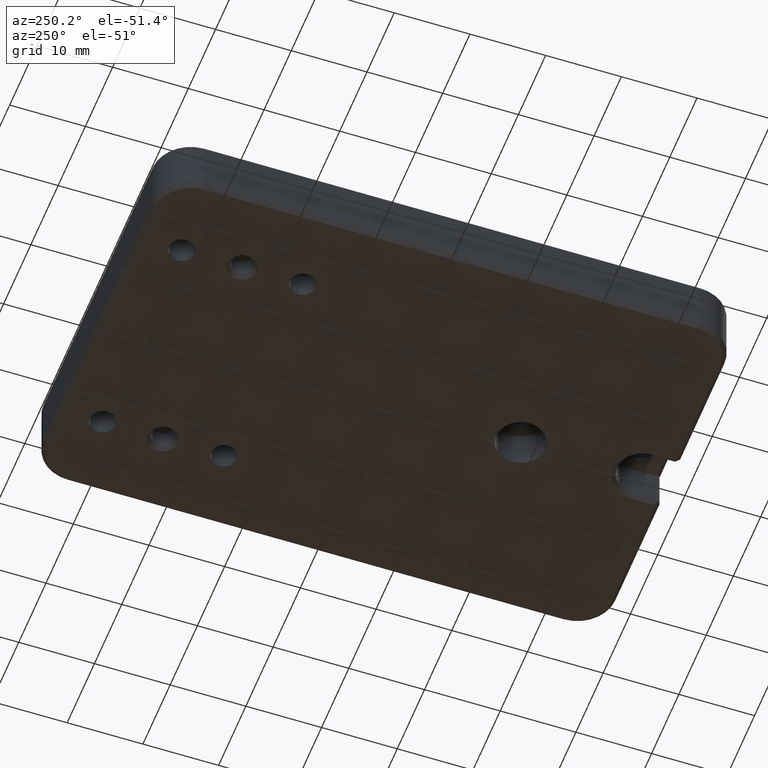
[diagram: clean part render]
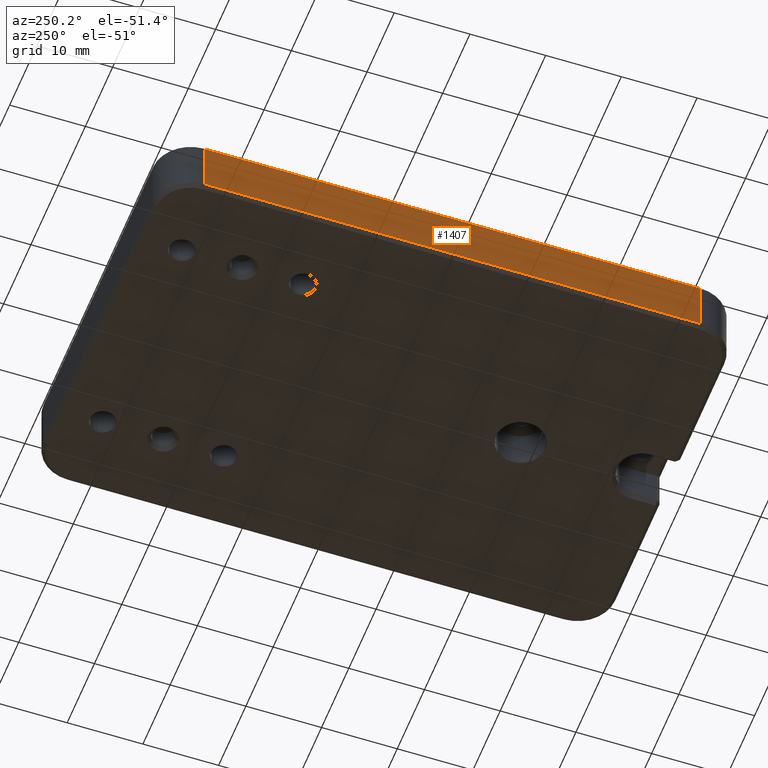
[diagram: same view with one face highlighted and labeled with its STEP entity id]
A machine part, auxiliary view. The second image highlights one B-rep face of the part: STEP entity #1407.
In plain terms, the highlighted planar face has unit normal (1, 0, -0).
Its self-contained STEP definition (entity closure, byte-faithful):
#55 = ORIENTED_EDGE ( 'NONE', *, *, #1224, .T. ) ;
#100 = VECTOR ( 'NONE', #1706, 1000.000000000000000 ) ;
#110 = DIRECTION ( 'NONE',  ( -1.838117590439000914E-16, 1.000000000000000000, 0.0000000000000000000 ) ) ;
#118 = EDGE_CURVE ( 'NONE', #550, #1359, #1484, .T. ) ;
#140 = ORIENTED_EDGE ( 'NONE', *, *, #743, .T. ) ;
#187 = DIRECTION ( 'NONE',  ( 0.0000000000000000000, 0.0000000000000000000, -1.000000000000000000 ) ) ;
#198 = CARTESIAN_POINT ( 'NONE',  ( -25.00000000000000711, 22.50000000000000711, 8.000000000000000000 ) ) ;
#333 = DIRECTION ( 'NONE',  ( -1.838117590439000914E-16, 1.000000000000000000, 0.0000000000000000000 ) ) ;
#488 = FACE_OUTER_BOUND ( 'NONE', #1371, .T. ) ;
#493 = VECTOR ( 'NONE', #187, 1000.000000000000000 ) ;
#550 = VERTEX_POINT ( 'NONE', #692 ) ;
#560 = CARTESIAN_POINT ( 'NONE',  ( -25.00000000000000711, 27.50000000000000711, 0.5000000000000004441 ) ) ;
#692 = CARTESIAN_POINT ( 'NONE',  ( -24.99999999999999289, -42.99999999999998579, 7.499999999999985789 ) ) ;
#722 = DIRECTION ( 'NONE',  ( 0.0000000000000000000, -0.0000000000000000000, 1.000000000000000000 ) ) ;
#743 = EDGE_CURVE ( 'NONE', #1380, #2447, #1719, .T. ) ;
#966 = VECTOR ( 'NONE', #722, 1000.000000000000000 ) ;
#1102 = ORIENTED_EDGE ( 'NONE', *, *, #118, .T. ) ;
#1224 = EDGE_CURVE ( 'NONE', #1359, #1380, #1895, .T. ) ;
#1274 = VECTOR ( 'NONE', #333, 1000.000000000000000 ) ;
#1359 = VERTEX_POINT ( 'NONE', #2012 ) ;
#1371 = EDGE_LOOP ( 'NONE', ( #55, #140, #1406, #1102 ) ) ;
#1380 = VERTEX_POINT ( 'NONE', #1985 ) ;
#1406 = ORIENTED_EDGE ( 'NONE', *, *, #1444, .T. ) ;
#1407 = ADVANCED_FACE ( 'NONE', ( #488 ), #2062, .F. ) ;
#1444 = EDGE_CURVE ( 'NONE', #2447, #550, #2264, .T. ) ;
#1465 = CARTESIAN_POINT ( 'NONE',  ( -24.99999999999999289, -42.99999999999998579, 8.000000000000000000 ) ) ;
#1484 = LINE ( 'NONE', #1496, #1274 ) ;
#1496 = CARTESIAN_POINT ( 'NONE',  ( -25.00000000000000711, 22.50000000000000711, 7.499999999999985789 ) ) ;
#1706 = DIRECTION ( 'NONE',  ( 1.838117590439000914E-16, -1.000000000000000000, 0.0000000000000000000 ) ) ;
#1719 = LINE ( 'NONE', #560, #100 ) ;
#1895 = LINE ( 'NONE', #198, #493 ) ;
#1985 = CARTESIAN_POINT ( 'NONE',  ( -25.00000000000000711, 22.50000000000000711, 0.5000000000000004441 ) ) ;
#2012 = CARTESIAN_POINT ( 'NONE',  ( -25.00000000000000711, 22.50000000000000711, 7.499999999999985789 ) ) ;
#2062 = PLANE ( 'NONE',  #2064 ) ;
#2064 = AXIS2_PLACEMENT_3D ( 'NONE', #2456, #2445, #110 ) ;
#2141 = CARTESIAN_POINT ( 'NONE',  ( -24.99999999999999289, -42.99999999999998579, 0.5000000000000004441 ) ) ;
#2264 = LINE ( 'NONE', #1465, #966 ) ;
#2445 = DIRECTION ( 'NONE',  ( 1.000000000000000000, 1.838117590439000914E-16, -0.0000000000000000000 ) ) ;
#2447 = VERTEX_POINT ( 'NONE', #2141 ) ;
#2456 = CARTESIAN_POINT ( 'NONE',  ( -25.00000000000000711, 27.50000000000000711, 8.000000000000000000 ) ) ;